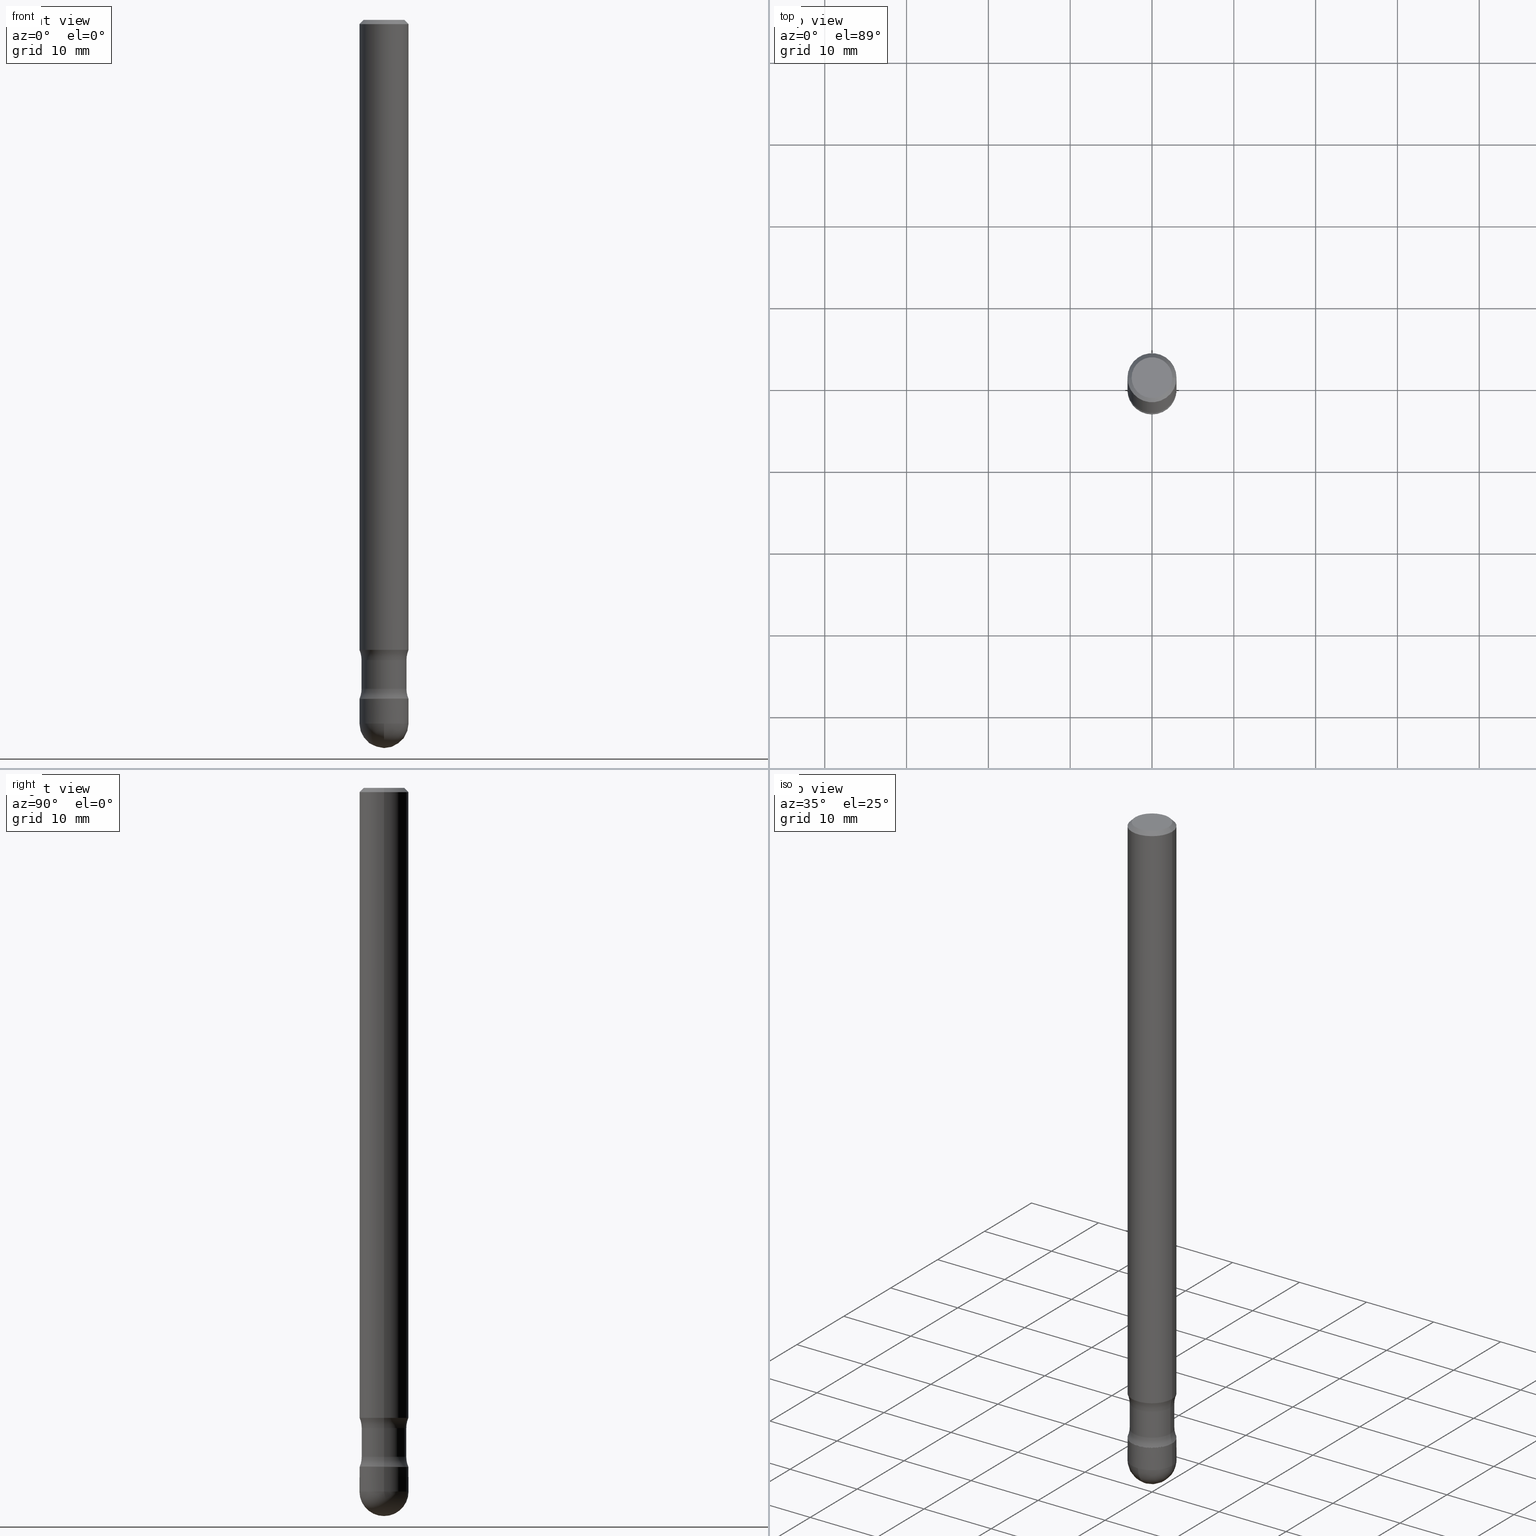
[diagram: canonical four-view strip — front | top / right | iso, engineering-drawing reading convention]
A machine part, canonical four-view strip (front | top / right | iso — engineering-drawing reading convention). The complete STEP part file that produces these views, byte-faithful:
ISO-10303-21;
HEADER;
FILE_DESCRIPTION (( 'STEP AP203' ),
    '1' );
FILE_NAME ('91356.STEP',
    '2024-02-29T19:27:18',
    ( '' ),
    ( '' ),
    'SwSTEP 2.0',
    'SolidWorks 2023',
    '' );
FILE_SCHEMA (( 'CONFIG_CONTROL_DESIGN' ));
ENDSEC;

DATA;
#1 = PRODUCT_DEFINITION ( 'UNKNOWN', '', #138, #198 ) ;
#2 = VERTEX_POINT ( 'NONE', #283 ) ;
#3 = VERTEX_POINT ( 'NONE', #464 ) ;
#4 = DIRECTION ( 'NONE',  ( -1.000000000000000000, 6.982962677686266711E-15, -4.883557194083112901E-29 ) ) ;
#5 = ORIENTED_EDGE ( 'NONE', *, *, #475, .T. ) ;
#6 = CONICAL_SURFACE ( 'NONE', #82, 0.1175999999999994133, 0.7853981633982034527 ) ;
#7 = ORIENTED_EDGE ( 'NONE', *, *, #158, .F. ) ;
#8 = APPROVAL_PERSON_ORGANIZATION ( #559, #336, #250 ) ;
#9 = DIRECTION ( 'NONE',  ( -1.000000000000000000, 6.982962677686265922E-15, -4.876176775795935793E-29 ) ) ;
#10 = DIRECTION ( 'NONE',  ( -1.000000000000000000, 6.982962677686265922E-15, 0.000000000000000000 ) ) ;
#11 = COORDINATED_UNIVERSAL_TIME_OFFSET ( 5, 0, .BEHIND. ) ;
#12 = FACE_OUTER_BOUND ( 'NONE', #456, .T. ) ;
#13 = APPROVAL_DATE_TIME ( #184, #304 ) ;
#14 = CARTESIAN_POINT ( 'NONE',  ( 8.279868283981634472E-29, -1.182145751705512057E-14, -3.385799999999999699 ) ) ;
#15 = ORIENTED_EDGE ( 'NONE', *, *, #383, .F. ) ;
#16 = PERSON_AND_ORGANIZATION ( #71, #495 ) ;
#17 = AXIS2_PLACEMENT_3D ( 'NONE', #103, #105, #23 ) ;
#18 = CYLINDRICAL_SURFACE ( 'NONE', #202, 0.1180999999999994415 ) ;
#19 = VERTEX_POINT ( 'NONE', #189 ) ;
#20 = DIRECTION ( 'NONE',  ( 1.000000000000000000, -7.105427357601001070E-15, 4.926315508542082329E-29 ) ) ;
#21 = VERTEX_POINT ( 'NONE', #374 ) ;
#22 = EDGE_CURVE ( 'NONE', #2, #19, #506, .T. ) ;
#23 = DIRECTION ( 'NONE',  ( 1.000000000000000000, -6.982962677686272233E-15, 0.000000000000000000 ) ) ;
#24 = ORIENTED_EDGE ( 'NONE', *, *, #22, .F. ) ;
#25 = TOROIDAL_SURFACE ( 'NONE', #459, 0.2329999999999877169, 0.1249999999999882871 ) ;
#26 = VECTOR ( 'NONE', #343, 39.37007874015748143 ) ;
#27 = DIRECTION ( 'NONE',  ( 0.7071067811865421326, -7.319954787623237113E-15, -0.7071067811865529018 ) ) ;
#28 = ORIENTED_EDGE ( 'NONE', *, *, #396, .F. ) ;
#29 = DIRECTION ( 'NONE',  ( -2.445468806185136597E-29, 3.491481338843145583E-15, 1.000000000000000000 ) ) ;
#30 = VERTEX_POINT ( 'NONE', #146 ) ;
#31 = APPLICATION_CONTEXT ( 'configuration controlled 3d designs of mechanical parts and assemblies' ) ;
#32 = DIRECTION ( 'NONE',  ( -6.982962677686266711E-15, -1.000000000000000000, 3.491481338843145583E-15 ) ) ;
#33 = PRODUCT ( '91356', '91356', '', ( #426 ) ) ;
#34 = FACE_OUTER_BOUND ( 'NONE', #152, .T. ) ;
#35 = CIRCLE ( 'NONE', #535, 0.1175999999999994133 ) ;
#36 = CARTESIAN_POINT ( 'NONE',  ( -0.2329999999999877169, -9.129259620400167476E-15, -3.080723876320338395 ) ) ;
#37 = CYLINDRICAL_SURFACE ( 'NONE', #305, 0.1180999999999998579 ) ;
#38 = DIRECTION ( 'NONE',  ( 0.000000000000000000, 0.000000000000000000, 1.000000000000000000 ) ) ;
#39 = FACE_OUTER_BOUND ( 'NONE', #508, .T. ) ;
#40 = DATE_AND_TIME ( #437, #395 ) ;
#41 = AXIS2_PLACEMENT_3D ( 'NONE', #397, #124, #83 ) ;
#42 = CARTESIAN_POINT ( 'NONE',  ( 7.870682963910265403E-29, -1.123724932533975948E-14, -3.218476123679660628 ) ) ;
#43 = APPROVAL_PERSON_ORGANIZATION ( #16, #304, #494 ) ;
#44 = ADVANCED_FACE ( 'NONE', ( #61 ), #377, .F. ) ;
#45 = CARTESIAN_POINT ( 'NONE',  ( 7.990201323200652143E-29, -1.140788986675909760E-14, -3.267349517193451458 ) ) ;
#46 = FACE_OUTER_BOUND ( 'NONE', #109, .T. ) ;
#47 = CARTESIAN_POINT ( 'NONE',  ( 7.991058417971169471E-29, -1.140911357093774486E-14, -3.267699999999999605 ) ) ;
#48 = VERTEX_POINT ( 'NONE', #550 ) ;
#49 = AXIS2_PLACEMENT_3D ( 'NONE', #140, #499, #258 ) ;
#50 = DIRECTION ( 'NONE',  ( 1.000000000000000000, -6.982962677686265922E-15, 4.876176775795935793E-29 ) ) ;
#51 = ORIENTED_EDGE ( 'NONE', *, *, #235, .T. ) ;
#52 = DIRECTION ( 'NONE',  ( 2.445468806185136597E-29, -3.491481338843145583E-15, -1.000000000000000000 ) ) ;
#53 = ORIENTED_EDGE ( 'NONE', *, *, #345, .F. ) ;
#54 = CARTESIAN_POINT ( 'NONE',  ( -0.1180999999999994415, 8.391509709326743514E-16, -5.809262341591016458E-30 ) ) ;
#55 = ORIENTED_EDGE ( 'NONE', *, *, #345, .T. ) ;
#56 = AXIS2_PLACEMENT_3D ( 'NONE', #523, #522, #203 ) ;
#57 = CC_DESIGN_APPROVAL ( #304, ( #183 ) ) ;
#58 = CARTESIAN_POINT ( 'NONE',  ( 0.1079999999999993604, -1.215004735469706713E-14, -3.267699999999999605 ) ) ;
#59 = VERTEX_POINT ( 'NONE', #519 ) ;
#60 = CARTESIAN_POINT ( 'NONE',  ( -0.1175999999999994133, -1.057351531368387230E-14, -3.267699999999999605 ) ) ;
#61 = FACE_OUTER_BOUND ( 'NONE', #385, .T. ) ;
#62 = DIRECTION ( 'NONE',  ( -1.000000000000000000, 6.982962677686265922E-15, 0.000000000000000000 ) ) ;
#63 = EDGE_CURVE ( 'NONE', #30, #48, #488, .T. ) ;
#64 = ADVANCED_FACE ( 'NONE', ( #477 ), #516, .F. ) ;
#65 = VECTOR ( 'NONE', #524, 39.37007874015748143 ) ;
#66 = CC_DESIGN_APPROVAL ( #336, ( #1 ) ) ;
#67 = DIRECTION ( 'NONE',  ( 2.445468806185136597E-29, -3.491481338843145583E-15, -1.000000000000000000 ) ) ;
#68 = ORIENTED_EDGE ( 'NONE', *, *, #354, .F. ) ;
#69 = PLANE ( 'NONE',  #555 ) ;
#70 = ORIENTED_EDGE ( 'NONE', *, *, #187, .T. ) ;
#71 = PERSON ( 'UNSPECIFIED', 'UNSPECIFIED', 'UNSPECIFIED', ('UNSPECIFIED'), ('UNSPECIFIED'), ('UNSPECIFIED') ) ;
#72 = FACE_OUTER_BOUND ( 'NONE', #529, .T. ) ;
#73 = ADVANCED_FACE ( 'NONE', ( #348 ), #37, .T. ) ;
#74 = CIRCLE ( 'NONE', #422, 0.1181000000000000383 ) ;
#75 = TOROIDAL_SURFACE ( 'NONE', #504, 0.2329999999999978200, 0.1249999999999985151 ) ;
#76 = DIRECTION ( 'NONE',  ( -1.000000000000000000, 6.982962677686261977E-15, 0.000000000000000000 ) ) ;
#77 = DIRECTION ( 'NONE',  ( 2.438088387897960049E-29, -3.491481338843145188E-15, -1.000000000000000000 ) ) ;
#78 = DIRECTION ( 'NONE',  ( 2.445468806185136597E-29, -3.491481338843145583E-15, -1.000000000000000000 ) ) ;
#79 = PERSON_AND_ORGANIZATION_ROLE ( 'creator' ) ;
#80 = DIRECTION ( 'NONE',  ( 1.000000000000000000, -6.982962677686272233E-15, 0.000000000000000000 ) ) ;
#81 = CC_DESIGN_PERSON_AND_ORGANIZATION_ASSIGNMENT ( #500, #220, ( #183 ) ) ;
#82 = AXIS2_PLACEMENT_3D ( 'NONE', #125, #447, #85 ) ;
#83 = DIRECTION ( 'NONE',  ( -6.982962677686265922E-15, -1.000000000000000000, 0.000000000000000000 ) ) ;
#84 = ADVANCED_FACE ( 'NONE', ( #479 ), #394, .T. ) ;
#85 = DIRECTION ( 'NONE',  ( 1.000000000000000000, -6.982962677686261977E-15, 0.000000000000000000 ) ) ;
#86 = ORIENTED_EDGE ( 'NONE', *, *, #155, .F. ) ;
#87 = CARTESIAN_POINT ( 'NONE',  ( -0.1180999999999994693, -1.077613457306376004E-14, -3.385799999999999699 ) ) ;
#88 = VERTEX_POINT ( 'NONE', #205 ) ;
#89 = DIRECTION ( 'NONE',  ( -1.000000000000000000, 6.982962677686270655E-15, 0.000000000000000000 ) ) ;
#90 = ORIENTED_EDGE ( 'NONE', *, *, #355, .T. ) ;
#91 = DATE_AND_TIME ( #139, #288 ) ;
#92 = DIRECTION ( 'NONE',  ( -2.445468806185136597E-29, 3.491481338843145583E-15, 1.000000000000000000 ) ) ;
#93 = ORIENTED_EDGE ( 'NONE', *, *, #396, .T. ) ;
#94 = PERSON_AND_ORGANIZATION ( #71, #495 ) ;
#95 = CARTESIAN_POINT ( 'NONE',  ( -0.1180999999999996913, 7.548582654578818090E-16, -0.02000000000000033348 ) ) ;
#96 = EDGE_CURVE ( 'NONE', #48, #30, #35, .T. ) ;
#97 = EDGE_LOOP ( 'NONE', ( #55, #141, #493, #24 ) ) ;
#98 = CARTESIAN_POINT ( 'NONE',  ( 4.890937612370354609E-31, -6.982962677686407473E-17, -0.02000000000000033348 ) ) ;
#99 = ORIENTED_EDGE ( 'NONE', *, *, #131, .T. ) ;
#100 = COORDINATED_UNIVERSAL_TIME_OFFSET ( 5, 0, .BEHIND. ) ;
#101 = AXIS2_PLACEMENT_3D ( 'NONE', #252, #116, #299 ) ;
#102 = CONICAL_SURFACE ( 'NONE', #211, 0.1180999999999996913, 0.7853981633974407295 ) ;
#103 = CARTESIAN_POINT ( 'NONE',  ( 8.279868283981634472E-29, -1.182145751705512057E-14, -3.385799999999999699 ) ) ;
#104 = ORIENTED_EDGE ( 'NONE', *, *, #442, .F. ) ;
#105 = DIRECTION ( 'NONE',  ( -2.445468806185136597E-29, 3.491481338843145583E-15, 1.000000000000000000 ) ) ;
#106 = ORIENTED_EDGE ( 'NONE', *, *, #515, .F. ) ;
#107 = ORIENTED_EDGE ( 'NONE', *, *, #442, .T. ) ;
#108 = CARTESIAN_POINT ( 'NONE',  ( 8.064392034097104120E-29, -1.213003177103627933E-14, -3.385799999999999699 ) ) ;
#109 = EDGE_LOOP ( 'NONE', ( #514, #107, #323, #225 ) ) ;
#110 = EDGE_CURVE ( 'NONE', #21, #291, #561, .T. ) ;
#111 = AXIS2_PLACEMENT_3D ( 'NONE', #214, #178, #4 ) ;
#112 = LOCAL_TIME ( 14, 27, 18.00000000000000000, #11 ) ;
#113 = APPROVAL_STATUS ( 'not_yet_approved' ) ;
#114 = VERTEX_POINT ( 'NONE', #249 ) ;
#115 = LINE ( 'NONE', #156, #26 ) ;
#116 = DIRECTION ( 'NONE',  ( 2.438088387897960049E-29, -3.491481338843145188E-15, -1.000000000000000000 ) ) ;
#117 =( CONVERSION_BASED_UNIT ( 'INCH', #292 ) LENGTH_UNIT ( ) NAMED_UNIT ( #353 ) );
#118 = DIRECTION ( 'NONE',  ( 2.445468806185136597E-29, -3.491481338843145583E-15, -1.000000000000000000 ) ) ;
#119 =( LENGTH_UNIT ( ) NAMED_UNIT ( * ) SI_UNIT ( $, .METRE. ) );
#120 = CIRCLE ( 'NONE', #402, 0.09809999999999965969 ) ;
#121 = DIRECTION ( 'NONE',  ( -1.000000000000000000, 6.982962677686269866E-15, 0.000000000000000000 ) ) ;
#122 = DATE_AND_TIME ( #350, #562 ) ;
#123 = DIRECTION ( 'NONE',  ( 2.445468806185136597E-29, -3.491481338843145583E-15, -1.000000000000000000 ) ) ;
#124 = DIRECTION ( 'NONE',  ( -1.000000000000000000, 6.982962677686265922E-15, -4.883557194083112340E-29 ) ) ;
#125 = CARTESIAN_POINT ( 'NONE',  ( 7.991058417971169471E-29, -1.140911357093774486E-14, -3.267699999999999605 ) ) ;
#126 = EDGE_CURVE ( 'NONE', #466, #19, #512, .T. ) ;
#127 = ORIENTED_EDGE ( 'NONE', *, *, #268, .F. ) ;
#128 = ORIENTED_EDGE ( 'NONE', *, *, #96, .F. ) ;
#129 = DIRECTION ( 'NONE',  ( 2.445468806185136597E-29, -3.491481338843145583E-15, -1.000000000000000000 ) ) ;
#130 = ADVANCED_FACE ( 'NONE', ( #72 ), #518, .T. ) ;
#131 = EDGE_CURVE ( 'NONE', #88, #458, #339, .T. ) ;
#132 = CARTESIAN_POINT ( 'NONE',  ( 8.064392034097104120E-29, -1.213003177103627933E-14, -3.385799999999999699 ) ) ;
#133 = ORIENTED_EDGE ( 'NONE', *, *, #158, .T. ) ;
#134 = VERTEX_POINT ( 'NONE', #435 ) ;
#135 = LINE ( 'NONE', #492, #65 ) ;
#136 = AXIS2_PLACEMENT_3D ( 'NONE', #175, #224, #496 ) ;
#137 = CIRCLE ( 'NONE', #201, 0.1249999999999882871 ) ;
#138 = PRODUCT_DEFINITION_FORMATION_WITH_SPECIFIED_SOURCE ( 'ANY', '', #33, .NOT_KNOWN. ) ;
#139 = CALENDAR_DATE ( 2024, 29, 2 ) ;
#140 = CARTESIAN_POINT ( 'NONE',  ( 7.991058417971169471E-29, -1.140911357093774486E-14, -3.267699999999999605 ) ) ;
#141 = ORIENTED_EDGE ( 'NONE', *, *, #436, .T. ) ;
#142 = ADVANCED_FACE ( 'NONE', ( #39 ), #25, .F. ) ;
#143 = DIRECTION ( 'NONE',  ( -0.7071067811865421326, 2.468850131082200657E-15, -0.7071067811865529018 ) ) ;
#144 = ORIENTED_EDGE ( 'NONE', *, *, #63, .T. ) ;
#145 = DIRECTION ( 'NONE',  ( 1.000000000000000000, -6.982962677686268288E-15, 0.000000000000000000 ) ) ;
#146 = CARTESIAN_POINT ( 'NONE',  ( -0.1175999999999994133, -1.057165829653353752E-14, -3.267699999999999605 ) ) ;
#147 = CIRCLE ( 'NONE', #247, 0.1180999999999996913 ) ;
#148 = ORIENTED_EDGE ( 'NONE', *, *, #302, .T. ) ;
#149 = CARTESIAN_POINT ( 'NONE',  ( -0.1180999999999994138, -1.077613457306376004E-14, -3.267699999999999605 ) ) ;
#150 = ORIENTED_EDGE ( 'NONE', *, *, #267, .F. ) ;
#151 = DIRECTION ( 'NONE',  ( 6.860497997771531562E-15, 1.000000000000000000, -3.491481338843145583E-15 ) ) ;
#152 = EDGE_LOOP ( 'NONE', ( #409, #51, #312, #461 ) ) ;
#153 = AXIS2_PLACEMENT_3D ( 'NONE', #566, #171, #50 ) ;
#154 = CIRCLE ( 'NONE', #489, 0.1180999999999994138 ) ;
#155 = EDGE_CURVE ( 'NONE', #2, #491, #137, .T. ) ;
#156 = CARTESIAN_POINT ( 'NONE',  ( 0.1180999999999994415, -8.246878922347442197E-16, 5.758764772214972414E-30 ) ) ;
#157 = DIRECTION ( 'NONE',  ( 2.445468806185136597E-29, -3.491481338843145583E-15, -1.000000000000000000 ) ) ;
#158 = EDGE_CURVE ( 'NONE', #491, #458, #367, .T. ) ;
#159 = CARTESIAN_POINT ( 'NONE',  ( 0.000000000000000000, 0.000000000000000000, 0.000000000000000000 ) ) ;
#160 = FACE_OUTER_BOUND ( 'NONE', #425, .T. ) ;
#161 = DIRECTION ( 'NONE',  ( -1.000000000000000000, 6.982962677686268288E-15, -4.883557194083112901E-29 ) ) ;
#162 = EDGE_CURVE ( 'NONE', #114, #134, #358, .T. ) ;
#163 = COORDINATED_UNIVERSAL_TIME_OFFSET ( 5, 0, .BEHIND. ) ;
#164 = AXIS2_PLACEMENT_3D ( 'NONE', #560, #483, #166 ) ;
#165 = DIRECTION ( 'NONE',  ( 2.445468806185136597E-29, -3.491481338843145583E-15, -1.000000000000000000 ) ) ;
#166 = DIRECTION ( 'NONE',  ( -1.000000000000000000, 6.860497997771536296E-15, 0.000000000000000000 ) ) ;
#167 = ORIENTED_EDGE ( 'NONE', *, *, #110, .F. ) ;
#168 = DIRECTION ( 'NONE',  ( 1.000000000000000000, -6.982962677686274599E-15, 0.000000000000000000 ) ) ;
#169 = EDGE_LOOP ( 'NONE', ( #265, #15, #243, #90 ) ) ;
#170 = AXIS2_PLACEMENT_3D ( 'NONE', #132, #441, #270 ) ;
#171 = DIRECTION ( 'NONE',  ( -2.438088387897960049E-29, 3.491481338843145188E-15, 1.000000000000000000 ) ) ;
#172 = VECTOR ( 'NONE', #507, 39.37007874015748143 ) ;
#173 = ORIENTED_EDGE ( 'NONE', *, *, #405, .T. ) ;
#174 = PRODUCT_RELATED_PRODUCT_CATEGORY ( 'detail', '', ( #33 ) ) ;
#175 = CARTESIAN_POINT ( 'NONE',  ( 7.533814140011144657E-29, -1.075628992430098040E-14, -3.080723876320338395 ) ) ;
#176 = ORIENTED_EDGE ( 'NONE', *, *, #96, .T. ) ;
#177 = PERSON_AND_ORGANIZATION ( #71, #495 ) ;
#178 = DIRECTION ( 'NONE',  ( 2.445468806185136597E-29, -3.491481338843145583E-15, -1.000000000000000000 ) ) ;
#179 = ADVANCED_BREP_SHAPE_REPRESENTATION ( '91356', ( #375, #564, #229 ), #471 ) ;
#180 = DIRECTION ( 'NONE',  ( 1.000000000000000000, -6.982962677686272233E-15, 0.000000000000000000 ) ) ;
#181 = AXIS2_PLACEMENT_3D ( 'NONE', #234, #238, #161 ) ;
#182 = EDGE_LOOP ( 'NONE', ( #176, #144 ) ) ;
#183 = SECURITY_CLASSIFICATION ( '', '', #411 ) ;
#184 = DATE_AND_TIME ( #324, #112 ) ;
#185 = FACE_OUTER_BOUND ( 'NONE', #420, .T. ) ;
#186 = EDGE_LOOP ( 'NONE', ( #106, #510, #173, #219 ) ) ;
#187 = EDGE_CURVE ( 'NONE', #59, #114, #277, .T. ) ;
#188 = CARTESIAN_POINT ( 'NONE',  ( 0.1181000000000000522, -6.137352466276741178E-15, -3.031500000000000750 ) ) ;
#189 = CARTESIAN_POINT ( 'NONE',  ( -0.1079999999999993049, -1.048308935614964628E-14, -3.218476123679660628 ) ) ;
#190 = DIRECTION ( 'NONE',  ( -2.445468806185136597E-29, 3.491481338843145583E-15, 1.000000000000000000 ) ) ;
#191 = ORIENTED_EDGE ( 'NONE', *, *, #187, .F. ) ;
#192 = AXIS2_PLACEMENT_3D ( 'NONE', #438, #118, #207 ) ;
#193 = CIRCLE ( 'NONE', #17, 0.1180999999999994554 ) ;
#194 = CARTESIAN_POINT ( 'NONE',  ( 0.1180999999999994138, -1.223380146317248997E-14, -3.267699999999999605 ) ) ;
#195 = EDGE_LOOP ( 'NONE', ( #222, #284, #7, #444 ) ) ;
#196 = FACE_OUTER_BOUND ( 'NONE', #540, .T. ) ;
#197 = ORIENTED_EDGE ( 'NONE', *, *, #200, .T. ) ;
#198 = DESIGN_CONTEXT ( 'detailed design', #253, 'design' ) ;
#199 = DIRECTION ( 'NONE',  ( 2.445468806185136597E-29, -3.491481338843145583E-15, -1.000000000000000000 ) ) ;
#200 = EDGE_CURVE ( 'NONE', #320, #3, #349, .T. ) ;
#201 = AXIS2_PLACEMENT_3D ( 'NONE', #36, #32, #351 ) ;
#202 = AXIS2_PLACEMENT_3D ( 'NONE', #276, #190, #376 ) ;
#203 = DIRECTION ( 'NONE',  ( -1.000000000000000000, 6.982962677686270655E-15, 0.000000000000000000 ) ) ;
#204 = PERSON_AND_ORGANIZATION ( #71, #495 ) ;
#205 = CARTESIAN_POINT ( 'NONE',  ( 0.1079999999999994298, -1.144593710015005919E-14, -3.080723876320338395 ) ) ;
#206 = DIRECTION ( 'NONE',  ( 2.445468806185136597E-29, -3.491481338843145583E-15, -1.000000000000000000 ) ) ;
#207 = DIRECTION ( 'NONE',  ( -1.000000000000000000, 6.982962677686263555E-15, 0.000000000000000000 ) ) ;
#208 = AXIS2_PLACEMENT_3D ( 'NONE', #14, #362, #180 ) ;
#209 = DATE_TIME_ROLE ( 'creation_date' ) ;
#210 = LOCAL_TIME ( 14, 27, 18.00000000000000000, #472 ) ;
#211 = AXIS2_PLACEMENT_3D ( 'NONE', #332, #501, #62 ) ;
#212 = DIRECTION ( 'NONE',  ( -2.445468806185136597E-29, 3.491481338843145583E-15, 1.000000000000000000 ) ) ;
#213 = DIRECTION ( 'NONE',  ( 2.445468806185136597E-29, -3.491481338843145583E-15, -1.000000000000000000 ) ) ;
#214 = CARTESIAN_POINT ( 'NONE',  ( 7.533814140011144657E-29, -1.075628992430098040E-14, -3.080723876320338395 ) ) ;
#215 = EDGE_LOOP ( 'NONE', ( #546, #357, #242, #432, #503 ) ) ;
#216 = VECTOR ( 'NONE', #379, 39.37007874015748143 ) ;
#217 = DIRECTION ( 'NONE',  ( 2.445468806185136597E-29, -3.491481338843145583E-15, -1.000000000000000000 ) ) ;
#218 = CONICAL_SURFACE ( 'NONE', #331, 0.1180999999999996913, 0.7853981633974407295 ) ;
#219 = ORIENTED_EDGE ( 'NONE', *, *, #475, .F. ) ;
#220 = PERSON_AND_ORGANIZATION_ROLE ( 'classification_officer' ) ;
#221 = FACE_OUTER_BOUND ( 'NONE', #525, .T. ) ;
#222 = ORIENTED_EDGE ( 'NONE', *, *, #319, .T. ) ;
#223 = CC_DESIGN_PERSON_AND_ORGANIZATION_ASSIGNMENT ( #484, #79, ( #1 ) ) ;
#224 = DIRECTION ( 'NONE',  ( 2.445468806185136597E-29, -3.491481338843145583E-15, -1.000000000000000000 ) ) ;
#225 = ORIENTED_EDGE ( 'NONE', *, *, #302, .F. ) ;
#226 = LINE ( 'NONE', #421, #481 ) ;
#227 = CLOSED_SHELL ( 'NONE', ( #378, #44, #84, #341, #273, #412, #446, #73, #142, #552, #462, #251, #565, #246 ) ) ;
#228 = VERTEX_POINT ( 'NONE', #387 ) ;
#229 = AXIS2_PLACEMENT_3D ( 'NONE', #159, #38, #433 ) ;
#230 = ADVANCED_FACE ( 'NONE', ( #160 ), #313, .T. ) ;
#231 = DIRECTION ( 'NONE',  ( 7.105427357601001070E-15, 1.000000000000000000, 0.000000000000000000 ) ) ;
#232 = ORIENTED_EDGE ( 'NONE', *, *, #110, .T. ) ;
#233 = DIRECTION ( 'NONE',  ( -1.000000000000000000, 6.982962677686265922E-15, 0.000000000000000000 ) ) ;
#234 = CARTESIAN_POINT ( 'NONE',  ( 7.870682963910266524E-29, -1.123724932533976106E-14, -3.218476123679661072 ) ) ;
#235 = EDGE_CURVE ( 'NONE', #88, #2, #413, .T. ) ;
#236 = CC_DESIGN_DATE_AND_TIME_ASSIGNMENT ( #40, #209, ( #1 ) ) ;
#237 = CARTESIAN_POINT ( 'NONE',  ( 0.1180999999999996913, -8.800544403136798514E-16, -0.02000000000000033348 ) ) ;
#238 = DIRECTION ( 'NONE',  ( 2.445468806185136597E-29, -3.491481338843145583E-15, -1.000000000000000000 ) ) ;
#239 = AXIS2_PLACEMENT_3D ( 'NONE', #47, #92, #168 ) ;
#240 = CIRCLE ( 'NONE', #451, 0.1249999999999985151 ) ;
#241 = DIRECTION ( 'NONE',  ( -0.7071067811870814790, 7.493145998872283714E-15, 0.7071067811860135555 ) ) ;
#242 = ORIENTED_EDGE ( 'NONE', *, *, #162, .T. ) ;
#243 = ORIENTED_EDGE ( 'NONE', *, *, #399, .T. ) ;
#244 = CARTESIAN_POINT ( 'NONE',  ( 7.991058417971169471E-29, -1.140911357093774486E-14, -3.267699999999999605 ) ) ;
#245 = AXIS2_PLACEMENT_3D ( 'NONE', #344, #129, #398 ) ;
#246 = ADVANCED_FACE ( 'NONE', ( #407 ), #452, .T. ) ;
#247 = AXIS2_PLACEMENT_3D ( 'NONE', #98, #337, #233 ) ;
#248 =( NAMED_UNIT ( * ) SI_UNIT ( $, .STERADIAN. ) SOLID_ANGLE_UNIT ( ) );
#249 = CARTESIAN_POINT ( 'NONE',  ( -8.246878922346650378E-16, -0.1181000000000117789, -3.385799999999999255 ) ) ;
#250 = APPROVAL_ROLE ( '' ) ;
#251 = ADVANCED_FACE ( 'NONE', ( #221 ), #6, .T. ) ;
#252 = CARTESIAN_POINT ( 'NONE',  ( 7.991058417971169471E-29, -1.140911357093774486E-14, -3.267699999999999605 ) ) ;
#253 = APPLICATION_CONTEXT ( 'configuration controlled 3d designs of mechanical parts and assemblies' ) ;
#254 = COORDINATED_UNIVERSAL_TIME_OFFSET ( 5, 0, .BEHIND. ) ;
#255 = CARTESIAN_POINT ( 'NONE',  ( 7.991058417971169471E-29, -1.140911357093774486E-14, -3.267699999999999605 ) ) ;
#256 = AXIS2_PLACEMENT_3D ( 'NONE', #42, #78, #121 ) ;
#257 = CIRCLE ( 'NONE', #368, 0.1180999999999994554 ) ;
#258 = DIRECTION ( 'NONE',  ( 1.000000000000000000, -6.982962677686261977E-15, 0.000000000000000000 ) ) ;
#259 = EDGE_CURVE ( 'NONE', #458, #491, #74, .T. ) ;
#260 = CC_DESIGN_PERSON_AND_ORGANIZATION_ASSIGNMENT ( #94, #363, ( #138 ) ) ;
#261 = CARTESIAN_POINT ( 'NONE',  ( -0.1180999999999998579, -1.058442567870299818E-14, -3.267699999999999605 ) ) ;
#262 = ORIENTED_EDGE ( 'NONE', *, *, #162, .F. ) ;
#263 = ORIENTED_EDGE ( 'NONE', *, *, #235, .F. ) ;
#264 = CARTESIAN_POINT ( 'NONE',  ( 8.391509709327586609E-16, 0.1180999999999878397, -3.385800000000000143 ) ) ;
#265 = ORIENTED_EDGE ( 'NONE', *, *, #448, .F. ) ;
#266 = ORIENTED_EDGE ( 'NONE', *, *, #497, .T. ) ;
#267 = EDGE_CURVE ( 'NONE', #534, #528, #315, .T. ) ;
#268 = EDGE_CURVE ( 'NONE', #3, #320, #120, .T. ) ;
#269 = TOROIDAL_SURFACE ( 'NONE', #111, 0.2329999999999877169, 0.1249999999999882871 ) ;
#270 = DIRECTION ( 'NONE',  ( -6.982962677686265922E-15, -1.000000000000000000, 4.626330217890363025E-15 ) ) ;
#271 = EDGE_LOOP ( 'NONE', ( #286, #308 ) ) ;
#272 = APPROVAL_STATUS ( 'not_yet_approved' ) ;
#273 = ADVANCED_FACE ( 'NONE', ( #410 ), #443, .T. ) ;
#274 = CARTESIAN_POINT ( 'NONE',  ( 0.000000000000000000, 0.000000000000000000, 0.000000000000000000 ) ) ;
#275 = LINE ( 'NONE', #54, #521 ) ;
#276 = CARTESIAN_POINT ( 'NONE',  ( 0.000000000000000000, 0.000000000000000000, 0.000000000000000000 ) ) ;
#277 = CIRCLE ( 'NONE', #41, 0.1181000000000001632 ) ;
#278 = ORIENTED_EDGE ( 'NONE', *, *, #474, .F. ) ;
#279 = AXIS2_PLACEMENT_3D ( 'NONE', #244, #206, #298 ) ;
#280 = DIRECTION ( 'NONE',  ( 1.000000000000000000, -6.982962677686272233E-15, 0.000000000000000000 ) ) ;
#281 = ORIENTED_EDGE ( 'NONE', *, *, #126, .T. ) ;
#282 = DIRECTION ( 'NONE',  ( -6.982962677686266711E-15, -1.000000000000000000, 3.491481338843145583E-15 ) ) ;
#283 = CARTESIAN_POINT ( 'NONE',  ( -0.1079999999999994298, -1.000212995511086877E-14, -3.080723876320338395 ) ) ;
#284 = ORIENTED_EDGE ( 'NONE', *, *, #502, .T. ) ;
#285 = DIRECTION ( 'NONE',  ( -1.000000000000000000, 6.860497997771533140E-15, 0.000000000000000000 ) ) ;
#286 = ORIENTED_EDGE ( 'NONE', *, *, #267, .T. ) ;
#287 = AXIS2_PLACEMENT_3D ( 'NONE', #322, #52, #10 ) ;
#288 = LOCAL_TIME ( 14, 27, 18.00000000000000000, #100 ) ;
#289 = CC_DESIGN_PERSON_AND_ORGANIZATION_ASSIGNMENT ( #177, #531, ( #138 ) ) ;
#290 = APPROVAL_ROLE ( '' ) ;
#291 = VERTEX_POINT ( 'NONE', #404 ) ;
#292 = LENGTH_MEASURE_WITH_UNIT ( LENGTH_MEASURE( 0.02539999999999999897 ), #119 );
#293 = CARTESIAN_POINT ( 'NONE',  ( 7.991058417971169471E-29, -1.140911357093774486E-14, -3.267699999999999605 ) ) ;
#294 = UNCERTAINTY_MEASURE_WITH_UNIT (LENGTH_MEASURE( 1.000000000000000082E-05 ), #117, 'distance_accuracy_value', 'NONE');
#295 = DIRECTION ( 'NONE',  ( -1.000000000000000000, 6.982962677686266711E-15, 0.000000000000000000 ) ) ;
#296 = AXIS2_PLACEMENT_3D ( 'NONE', #485, #390, #80 ) ;
#297 = AXIS2_PLACEMENT_3D ( 'NONE', #463, #151, #285 ) ;
#298 = DIRECTION ( 'NONE',  ( -1.000000000000000000, 6.982962677686266711E-15, 0.000000000000000000 ) ) ;
#299 = DIRECTION ( 'NONE',  ( -1.000000000000000000, 6.982962677686265922E-15, -4.876176775795935793E-29 ) ) ;
#300 = APPROVAL_DATE_TIME ( #122, #336 ) ;
#301 = CARTESIAN_POINT ( 'NONE',  ( 0.000000000000000000, 0.000000000000000000, 0.000000000000000000 ) ) ;
#302 = EDGE_CURVE ( 'NONE', #48, #21, #135, .T. ) ;
#303 = DIRECTION ( 'NONE',  ( 2.445468806185136597E-29, -3.491481338843145583E-15, -1.000000000000000000 ) ) ;
#304 = APPROVAL ( #272, 'UNSPECIFIED' ) ;
#305 = AXIS2_PLACEMENT_3D ( 'NONE', #255, #157, #434 ) ;
#306 = CIRCLE ( 'NONE', #317, 0.1179504828065483096 ) ;
#307 = CARTESIAN_POINT ( 'NONE',  ( 7.991058417971169471E-29, -1.140911357093774486E-14, -3.267699999999999605 ) ) ;
#308 = ORIENTED_EDGE ( 'NONE', *, *, #543, .T. ) ;
#309 = ORIENTED_EDGE ( 'NONE', *, *, #200, .F. ) ;
#310 = DIRECTION ( 'NONE',  ( -1.000000000000000000, 6.982962677686267499E-15, -4.876176775795936914E-29 ) ) ;
#311 = ORIENTED_EDGE ( 'NONE', *, *, #474, .T. ) ;
#312 = ORIENTED_EDGE ( 'NONE', *, *, #22, .T. ) ;
#313 = SPHERICAL_SURFACE ( 'NONE', #170, 0.1181000000000001632 ) ;
#314 = EDGE_CURVE ( 'NONE', #228, #491, #527, .T. ) ;
#315 = CIRCLE ( 'NONE', #239, 0.1180999999999994138 ) ;
#316 = DIRECTION ( 'NONE',  ( 2.445468806185136597E-29, -3.491481338843145583E-15, -1.000000000000000000 ) ) ;
#317 = AXIS2_PLACEMENT_3D ( 'NONE', #45, #213, #530 ) ;
#318 = EDGE_LOOP ( 'NONE', ( #473, #5, #335, #338 ) ) ;
#319 = EDGE_CURVE ( 'NONE', #228, #330, #520, .T. ) ;
#320 = VERTEX_POINT ( 'NONE', #360 ) ;
#321 = DATE_AND_TIME ( #327, #210 ) ;
#322 = CARTESIAN_POINT ( 'NONE',  ( 4.890937612370354609E-31, -6.982962677686407473E-17, -0.02000000000000033348 ) ) ;
#323 = ORIENTED_EDGE ( 'NONE', *, *, #383, .T. ) ;
#324 = CALENDAR_DATE ( 2024, 29, 2 ) ;
#325 = DIRECTION ( 'NONE',  ( -1.000000000000000000, 6.982962677686265922E-15, 0.000000000000000000 ) ) ;
#326 = ORIENTED_EDGE ( 'NONE', *, *, #155, .T. ) ;
#327 = CALENDAR_DATE ( 2024, 29, 2 ) ;
#328 = DIRECTION ( 'NONE',  ( -1.000000000000000000, 6.982962677686268288E-15, -4.883557194083112901E-29 ) ) ;
#329 = CLOSED_SHELL ( 'NONE', ( #130, #533, #230, #486, #64 ) ) ;
#330 = VERTEX_POINT ( 'NONE', #400 ) ;
#331 = AXIS2_PLACEMENT_3D ( 'NONE', #549, #67, #325 ) ;
#332 = CARTESIAN_POINT ( 'NONE',  ( 4.890937612370354609E-31, -6.982962677686407473E-17, -0.02000000000000033348 ) ) ;
#333 = ORIENTED_EDGE ( 'NONE', *, *, #319, .F. ) ;
#334 = FACE_OUTER_BOUND ( 'NONE', #215, .T. ) ;
#335 = ORIENTED_EDGE ( 'NONE', *, *, #314, .T. ) ;
#336 = APPROVAL ( #482, 'UNSPECIFIED' ) ;
#337 = DIRECTION ( 'NONE',  ( 2.445468806185136597E-29, -3.491481338843145583E-15, -1.000000000000000000 ) ) ;
#338 = ORIENTED_EDGE ( 'NONE', *, *, #259, .F. ) ;
#339 = CIRCLE ( 'NONE', #164, 0.1249999999999882871 ) ;
#340 = CC_DESIGN_APPROVAL ( #346, ( #138 ) ) ;
#341 = ADVANCED_FACE ( 'NONE', ( #12 ), #269, .F. ) ;
#342 = DIRECTION ( 'NONE',  ( -1.000000000000000000, 6.982962677686261977E-15, 0.000000000000000000 ) ) ;
#343 = DIRECTION ( 'NONE',  ( -2.445468806185136877E-29, 3.491481338843145188E-15, 1.000000000000000000 ) ) ;
#344 = CARTESIAN_POINT ( 'NONE',  ( 7.533814140011144657E-29, -1.075628992430098040E-14, -3.080723876320338395 ) ) ;
#345 = EDGE_CURVE ( 'NONE', #2, #88, #469, .T. ) ;
#346 = APPROVAL ( #113, 'UNSPECIFIED' ) ;
#347 = CYLINDRICAL_SURFACE ( 'NONE', #279, 0.1079999999999993604 ) ;
#348 = FACE_OUTER_BOUND ( 'NONE', #318, .T. ) ;
#349 = CIRCLE ( 'NONE', #430, 0.09809999999999965969 ) ;
#350 = CALENDAR_DATE ( 2024, 29, 2 ) ;
#351 = DIRECTION ( 'NONE',  ( 1.000000000000000000, -6.982962677686264344E-15, 0.000000000000000000 ) ) ;
#352 = DIRECTION ( 'NONE',  ( -1.000000000000000000, 6.982962677686266711E-15, -4.883557194083112901E-29 ) ) ;
#353 = DIMENSIONAL_EXPONENTS ( 1.000000000000000000, 0.000000000000000000, 0.000000000000000000, 0.000000000000000000, 0.000000000000000000, 0.000000000000000000, 0.000000000000000000 ) ;
#354 = EDGE_CURVE ( 'NONE', #365, #114, #468, .T. ) ;
#355 = EDGE_CURVE ( 'NONE', #19, #466, #439, .T. ) ;
#356 = DIRECTION ( 'NONE',  ( 2.445468806185136597E-29, -3.491481338843145583E-15, -1.000000000000000000 ) ) ;
#357 = ORIENTED_EDGE ( 'NONE', *, *, #354, .T. ) ;
#358 = CIRCLE ( 'NONE', #296, 0.1180999999999994554 ) ;
#359 = VECTOR ( 'NONE', #241, 39.37007874015748143 ) ;
#360 = CARTESIAN_POINT ( 'NONE',  ( -0.09809999999999965969, 6.850286386810204829E-16, -4.783529417055797307E-30 ) ) ;
#361 = ORIENTED_EDGE ( 'NONE', *, *, #131, .F. ) ;
#362 = DIRECTION ( 'NONE',  ( -2.445468806185136597E-29, 3.491481338843145583E-15, 1.000000000000000000 ) ) ;
#363 = PERSON_AND_ORGANIZATION_ROLE ( 'design_supplier' ) ;
#364 = DIRECTION ( 'NONE',  ( -1.000000000000000000, 6.982962677686265133E-15, 0.000000000000000000 ) ) ;
#365 = VERTEX_POINT ( 'NONE', #87 ) ;
#366 = EDGE_LOOP ( 'NONE', ( #309, #127 ) ) ;
#367 = CIRCLE ( 'NONE', #56, 0.1181000000000000383 ) ;
#368 = AXIS2_PLACEMENT_3D ( 'NONE', #457, #29, #280 ) ;
#369 = CARTESIAN_POINT ( 'NONE',  ( 7.870682963910265403E-29, -1.123724932533975948E-14, -3.218476123679660628 ) ) ;
#370 = PRODUCT_DEFINITION_SHAPE ( 'NONE', 'NONE',  #1 ) ;
#371 = VERTEX_POINT ( 'NONE', #264 ) ;
#372 = CC_DESIGN_PERSON_AND_ORGANIZATION_ASSIGNMENT ( #204, #557, ( #33 ) ) ;
#373 = CARTESIAN_POINT ( 'NONE',  ( 7.870682963910266524E-29, -1.123724932533976106E-14, -3.218476123679661072 ) ) ;
#374 = CARTESIAN_POINT ( 'NONE',  ( 0.1179504828065483096, -1.221708891788960705E-14, -3.267349517193451458 ) ) ;
#375 = MANIFOLD_SOLID_BREP ( 'Body-Move/Copy2[1]', #329 ) ;
#376 = DIRECTION ( 'NONE',  ( 1.000000000000000000, -6.982962677686266711E-15, 4.876176775795935232E-29 ) ) ;
#377 = TOROIDAL_SURFACE ( 'NONE', #181, 0.2329999999999978200, 0.1249999999999985151 ) ;
#378 = ADVANCED_FACE ( 'NONE', ( #46 ), #389, .T. ) ;
#379 = DIRECTION ( 'NONE',  ( 2.445468806185136877E-29, -3.491481338843145188E-15, -1.000000000000000000 ) ) ;
#380 = AXIS2_PLACEMENT_3D ( 'NONE', #108, #467, #428 ) ;
#381 = LINE ( 'NONE', #58, #172 ) ;
#382 = ORIENTED_EDGE ( 'NONE', *, *, #405, .F. ) ;
#383 = EDGE_CURVE ( 'NONE', #291, #21, #306, .T. ) ;
#384 = LINE ( 'NONE', #95, #431 ) ;
#385 = EDGE_LOOP ( 'NONE', ( #167, #470, #281, #455 ) ) ;
#386 = DIRECTION ( 'NONE',  ( 1.000000000000000000, -6.982962677686274599E-15, 0.000000000000000000 ) ) ;
#387 = CARTESIAN_POINT ( 'NONE',  ( -0.1180999999999996913, 7.548582654578818090E-16, -0.02000000000000033348 ) ) ;
#388 = AXIS2_PLACEMENT_3D ( 'NONE', #293, #558, #295 ) ;
#389 = CONICAL_SURFACE ( 'NONE', #49, 0.1175999999999994133, 0.7853981633982034527 ) ;
#390 = DIRECTION ( 'NONE',  ( -2.445468806185136597E-29, 3.491481338843145583E-15, 1.000000000000000000 ) ) ;
#391 = CARTESIAN_POINT ( 'NONE',  ( 8.211964108959807889E-16, 0.1175999999999880058, -3.267700000000000049 ) ) ;
#392 = CARTESIAN_POINT ( 'NONE',  ( 7.991058417971169471E-29, -1.140911357093774486E-14, -3.267699999999999605 ) ) ;
#393 = APPLICATION_PROTOCOL_DEFINITION ( 'international standard', 'config_control_design', 1994, #253 ) ;
#394 = CYLINDRICAL_SURFACE ( 'NONE', #388, 0.1079999999999993604 ) ;
#395 = LOCAL_TIME ( 14, 27, 18.00000000000000000, #254 ) ;
#396 = EDGE_CURVE ( 'NONE', #59, #371, #440, .T. ) ;
#397 = CARTESIAN_POINT ( 'NONE',  ( 8.064392034097104120E-29, -1.213003177103627933E-14, -3.385799999999999699 ) ) ;
#398 = DIRECTION ( 'NONE',  ( -1.000000000000000000, 6.982962677686261977E-15, 0.000000000000000000 ) ) ;
#399 = EDGE_CURVE ( 'NONE', #291, #19, #240, .T. ) ;
#400 = CARTESIAN_POINT ( 'NONE',  ( 0.1180999999999996913, -8.800544403136798514E-16, -0.02000000000000033348 ) ) ;
#401 = DIRECTION ( 'NONE',  ( -2.445468806185136597E-29, 3.491481338843145583E-15, 1.000000000000000000 ) ) ;
#402 = AXIS2_PLACEMENT_3D ( 'NONE', #274, #217, #310 ) ;
#403 = AXIS2_PLACEMENT_3D ( 'NONE', #369, #538, #490 ) ;
#404 = CARTESIAN_POINT ( 'NONE',  ( -0.1179504828065483096, -1.058424604750589465E-14, -3.267349517193451458 ) ) ;
#405 = EDGE_CURVE ( 'NONE', #320, #228, #384, .T. ) ;
#406 = APPROVAL_DATE_TIME ( #321, #346 ) ;
#407 = FACE_OUTER_BOUND ( 'NONE', #366, .T. ) ;
#408 = EDGE_CURVE ( 'NONE', #371, #365, #257, .T. ) ;
#409 = ORIENTED_EDGE ( 'NONE', *, *, #436, .F. ) ;
#410 = FACE_OUTER_BOUND ( 'NONE', #195, .T. ) ;
#411 = SECURITY_CLASSIFICATION_LEVEL ( 'unclassified' ) ;
#412 = ADVANCED_FACE ( 'NONE', ( #196 ), #218, .T. ) ;
#413 = CIRCLE ( 'NONE', #245, 0.1079999999999994298 ) ;
#414 = AXIS2_PLACEMENT_3D ( 'NONE', #545, #20, #231 ) ;
#415 = DIRECTION ( 'NONE',  ( 2.445468806185136877E-29, -3.491481338843145188E-15, -1.000000000000000000 ) ) ;
#416 = CC_DESIGN_DATE_AND_TIME_ASSIGNMENT ( #91, #498, ( #183 ) ) ;
#417 = LINE ( 'NONE', #60, #359 ) ;
#418 = ORIENTED_EDGE ( 'NONE', *, *, #515, .T. ) ;
#419 = FACE_OUTER_BOUND ( 'NONE', #186, .T. ) ;
#420 = EDGE_LOOP ( 'NONE', ( #191, #93, #278, #262 ) ) ;
#421 = CARTESIAN_POINT ( 'NONE',  ( 0.1180999999999998579, -1.221933838447456240E-14, -3.267699999999999605 ) ) ;
#422 = AXIS2_PLACEMENT_3D ( 'NONE', #532, #356, #89 ) ;
#423 = ORIENTED_EDGE ( 'NONE', *, *, #551, .F. ) ;
#424 = FACE_OUTER_BOUND ( 'NONE', #169, .T. ) ;
#425 = EDGE_LOOP ( 'NONE', ( #28, #70, #68, #445 ) ) ;
#426 = MECHANICAL_CONTEXT ( 'NONE', #31, 'mechanical' ) ;
#427 = CARTESIAN_POINT ( 'NONE',  ( 0.000000000000000000, 0.000000000000000000, 0.000000000000000000 ) ) ;
#428 = DIRECTION ( 'NONE',  ( -6.982962677686265922E-15, -1.000000000000000000, 4.626330217890363025E-15 ) ) ;
#429 = CARTESIAN_POINT ( 'NONE',  ( 7.533814140011144657E-29, -1.075628992430098040E-14, -3.080723876320338395 ) ) ;
#430 = AXIS2_PLACEMENT_3D ( 'NONE', #427, #199, #556 ) ;
#431 = VECTOR ( 'NONE', #143, 39.37007874015748143 ) ;
#432 = ORIENTED_EDGE ( 'NONE', *, *, #551, .T. ) ;
#433 = DIRECTION ( 'NONE',  ( 1.000000000000000000, 0.000000000000000000, 0.000000000000000000 ) ) ;
#434 = DIRECTION ( 'NONE',  ( -1.000000000000000000, 6.982962677686265133E-15, 0.000000000000000000 ) ) ;
#435 = CARTESIAN_POINT ( 'NONE',  ( 0.1180999999999994693, -1.243997343623117940E-14, -3.385799999999999699 ) ) ;
#436 = EDGE_CURVE ( 'NONE', #88, #466, #381, .T. ) ;
#437 = CALENDAR_DATE ( 2024, 29, 2 ) ;
#438 = CARTESIAN_POINT ( 'NONE',  ( 7.990201323200652143E-29, -1.140788986675909760E-14, -3.267349517193451458 ) ) ;
#439 = CIRCLE ( 'NONE', #403, 0.1079999999999993049 ) ;
#440 = CIRCLE ( 'NONE', #414, 0.1181000000000001632 ) ;
#441 = DIRECTION ( 'NONE',  ( 1.000000000000000000, -6.982962677686265922E-15, 4.883557194083112901E-29 ) ) ;
#442 = EDGE_CURVE ( 'NONE', #30, #291, #417, .T. ) ;
#443 = CYLINDRICAL_SURFACE ( 'NONE', #480, 0.1180999999999998579 ) ;
#444 = ORIENTED_EDGE ( 'NONE', *, *, #314, .F. ) ;
#445 = ORIENTED_EDGE ( 'NONE', *, *, #408, .F. ) ;
#446 = ADVANCED_FACE ( 'NONE', ( #419 ), #102, .T. ) ;
#447 = DIRECTION ( 'NONE',  ( -2.445468806185136597E-29, 3.491481338843145583E-15, 1.000000000000000000 ) ) ;
#448 = EDGE_CURVE ( 'NONE', #21, #466, #536, .T. ) ;
#449 = SHAPE_DEFINITION_REPRESENTATION ( #370, #179 ) ;
#450 = VECTOR ( 'NONE', #454, 39.37007874015748143 ) ;
#451 = AXIS2_PLACEMENT_3D ( 'NONE', #539, #282, #145 ) ;
#452 = PLANE ( 'NONE',  #153 ) ;
#453 = ORIENTED_EDGE ( 'NONE', *, *, #259, .T. ) ;
#454 = DIRECTION ( 'NONE',  ( 2.445468806185136877E-29, -3.491481338843145188E-15, -1.000000000000000000 ) ) ;
#455 = ORIENTED_EDGE ( 'NONE', *, *, #399, .F. ) ;
#456 = EDGE_LOOP ( 'NONE', ( #263, #99, #453, #86 ) ) ;
#457 = CARTESIAN_POINT ( 'NONE',  ( 8.279868283981634472E-29, -1.182145751705512057E-14, -3.385799999999999699 ) ) ;
#458 = VERTEX_POINT ( 'NONE', #188 ) ;
#459 = AXIS2_PLACEMENT_3D ( 'NONE', #429, #165, #352 ) ;
#460 = DIRECTION ( 'NONE',  ( -2.445468806185136877E-29, 3.491481338843145188E-15, 1.000000000000000000 ) ) ;
#461 = ORIENTED_EDGE ( 'NONE', *, *, #126, .F. ) ;
#462 = ADVANCED_FACE ( 'NONE', ( #424 ), #75, .F. ) ;
#463 = CARTESIAN_POINT ( 'NONE',  ( 0.2329999999999978200, -1.283574535882051215E-14, -3.218476123679661072 ) ) ;
#464 = CARTESIAN_POINT ( 'NONE',  ( 0.09809999999999965969, -7.765346469475323778E-16, 5.110261127650069910E-30 ) ) ;
#465 = CARTESIAN_POINT ( 'NONE',  ( -0.1181000000000000383, -9.759737786468249915E-15, -3.031500000000000750 ) ) ;
#466 = VERTEX_POINT ( 'NONE', #505 ) ;
#467 = DIRECTION ( 'NONE',  ( 1.000000000000000000, -6.982962677686265922E-15, 4.883557194083112901E-29 ) ) ;
#468 = CIRCLE ( 'NONE', #208, 0.1180999999999994554 ) ;
#469 = CIRCLE ( 'NONE', #136, 0.1079999999999994298 ) ;
#470 = ORIENTED_EDGE ( 'NONE', *, *, #448, .T. ) ;
#471 =( GEOMETRIC_REPRESENTATION_CONTEXT ( 3 ) GLOBAL_UNCERTAINTY_ASSIGNED_CONTEXT ( ( #294 ) ) GLOBAL_UNIT_ASSIGNED_CONTEXT ( ( #117, #478, #248 ) ) REPRESENTATION_CONTEXT ( 'NONE', 'WORKASPACE' ) );
#472 = COORDINATED_UNIVERSAL_TIME_OFFSET ( 5, 0, .BEHIND. ) ;
#473 = ORIENTED_EDGE ( 'NONE', *, *, #502, .F. ) ;
#474 = EDGE_CURVE ( 'NONE', #134, #371, #193, .T. ) ;
#475 = EDGE_CURVE ( 'NONE', #330, #228, #147, .T. ) ;
#476 = APPLICATION_PROTOCOL_DEFINITION ( 'international standard', 'config_control_design', 1994, #31 ) ;
#477 = FACE_OUTER_BOUND ( 'NONE', #271, .T. ) ;
#478 =( NAMED_UNIT ( * ) PLANE_ANGLE_UNIT ( ) SI_UNIT ( $, .RADIAN. ) );
#479 = FACE_OUTER_BOUND ( 'NONE', #97, .T. ) ;
#480 = AXIS2_PLACEMENT_3D ( 'NONE', #307, #316, #364 ) ;
#481 = VECTOR ( 'NONE', #415, 39.37007874015748143 ) ;
#482 = APPROVAL_STATUS ( 'not_yet_approved' ) ;
#483 = DIRECTION ( 'NONE',  ( 6.860497997771531562E-15, 1.000000000000000000, -3.491481338843145583E-15 ) ) ;
#484 = PERSON_AND_ORGANIZATION ( #71, #495 ) ;
#485 = CARTESIAN_POINT ( 'NONE',  ( 8.279868283981634472E-29, -1.182145751705512057E-14, -3.385799999999999699 ) ) ;
#486 = ADVANCED_FACE ( 'NONE', ( #334 ), #18, .T. ) ;
#487 = DIRECTION ( 'NONE',  ( 1.000000000000000000, -6.982962677686266711E-15, 4.876176775795935232E-29 ) ) ;
#488 = CIRCLE ( 'NONE', #554, 0.1175999999999994133 ) ;
#489 = AXIS2_PLACEMENT_3D ( 'NONE', #553, #401, #386 ) ;
#490 = DIRECTION ( 'NONE',  ( -1.000000000000000000, 6.982962677686269866E-15, 0.000000000000000000 ) ) ;
#491 = VERTEX_POINT ( 'NONE', #465 ) ;
#492 = CARTESIAN_POINT ( 'NONE',  ( 0.1175999999999994133, -1.223030998183364539E-14, -3.267699999999999605 ) ) ;
#493 = ORIENTED_EDGE ( 'NONE', *, *, #355, .F. ) ;
#494 = APPROVAL_ROLE ( '' ) ;
#495 = ORGANIZATION ( 'UNSPECIFIED', 'UNSPECIFIED', '' ) ;
#496 = DIRECTION ( 'NONE',  ( -1.000000000000000000, 6.982962677686261977E-15, 0.000000000000000000 ) ) ;
#497 = EDGE_CURVE ( 'NONE', #365, #528, #275, .T. ) ;
#498 = DATE_TIME_ROLE ( 'classification_date' ) ;
#499 = DIRECTION ( 'NONE',  ( -2.445468806185136597E-29, 3.491481338843145583E-15, 1.000000000000000000 ) ) ;
#500 = PERSON_AND_ORGANIZATION ( #71, #495 ) ;
#501 = DIRECTION ( 'NONE',  ( 2.445468806185136597E-29, -3.491481338843145583E-15, -1.000000000000000000 ) ) ;
#502 = EDGE_CURVE ( 'NONE', #330, #458, #226, .T. ) ;
#503 = ORIENTED_EDGE ( 'NONE', *, *, #543, .F. ) ;
#504 = AXIS2_PLACEMENT_3D ( 'NONE', #373, #541, #328 ) ;
#505 = CARTESIAN_POINT ( 'NONE',  ( 0.1079999999999993049, -1.173770340857968984E-14, -3.218476123679660628 ) ) ;
#506 = LINE ( 'NONE', #542, #216 ) ;
#507 = DIRECTION ( 'NONE',  ( 2.445468806185136877E-29, -3.491481338843145188E-15, -1.000000000000000000 ) ) ;
#508 = EDGE_LOOP ( 'NONE', ( #361, #53, #326, #133 ) ) ;
#509 = SPHERICAL_SURFACE ( 'NONE', #380, 0.1181000000000001632 ) ;
#510 = ORIENTED_EDGE ( 'NONE', *, *, #268, .T. ) ;
#511 = PERSON_AND_ORGANIZATION ( #71, #495 ) ;
#512 = CIRCLE ( 'NONE', #256, 0.1079999999999993049 ) ;
#513 = CC_DESIGN_SECURITY_CLASSIFICATION ( #183, ( #138 ) ) ;
#514 = ORIENTED_EDGE ( 'NONE', *, *, #63, .F. ) ;
#515 = EDGE_CURVE ( 'NONE', #3, #330, #547, .T. ) ;
#516 = PLANE ( 'NONE',  #101 ) ;
#517 = FACE_OUTER_BOUND ( 'NONE', #182, .T. ) ;
#518 = CYLINDRICAL_SURFACE ( 'NONE', #544, 0.1180999999999994415 ) ;
#519 = CARTESIAN_POINT ( 'NONE',  ( 8.348152143169964857E-29, -1.254960725650262040E-14, -3.503899999999999793 ) ) ;
#520 = CIRCLE ( 'NONE', #287, 0.1180999999999996913 ) ;
#521 = VECTOR ( 'NONE', #460, 39.37007874015748143 ) ;
#522 = DIRECTION ( 'NONE',  ( 2.445468806185136597E-29, -3.491481338843145583E-15, -1.000000000000000000 ) ) ;
#523 = CARTESIAN_POINT ( 'NONE',  ( 7.413438685950242831E-29, -1.058442567870299818E-14, -3.031500000000000750 ) ) ;
#524 = DIRECTION ( 'NONE',  ( 0.7071067811870814790, -2.468850131087849690E-15, 0.7071067811860135555 ) ) ;
#525 = EDGE_LOOP ( 'NONE', ( #104, #128, #148, #232 ) ) ;
#526 = VECTOR ( 'NONE', #27, 39.37007874015748143 ) ;
#527 = LINE ( 'NONE', #261, #450 ) ;
#528 = VERTEX_POINT ( 'NONE', #149 ) ;
#529 = EDGE_LOOP ( 'NONE', ( #548, #266, #150, #423, #311 ) ) ;
#530 = DIRECTION ( 'NONE',  ( -1.000000000000000000, 6.982962677686263555E-15, 0.000000000000000000 ) ) ;
#531 = PERSON_AND_ORGANIZATION_ROLE ( 'creator' ) ;
#532 = CARTESIAN_POINT ( 'NONE',  ( 7.413438685950242831E-29, -1.058442567870299818E-14, -3.031500000000000750 ) ) ;
#533 = ADVANCED_FACE ( 'NONE', ( #185 ), #509, .T. ) ;
#534 = VERTEX_POINT ( 'NONE', #194 ) ;
#535 = AXIS2_PLACEMENT_3D ( 'NONE', #563, #303, #76 ) ;
#536 = CIRCLE ( 'NONE', #297, 0.1249999999999985151 ) ;
#537 = APPROVAL_PERSON_ORGANIZATION ( #511, #346, #290 ) ;
#538 = DIRECTION ( 'NONE',  ( 2.445468806185136597E-29, -3.491481338843145583E-15, -1.000000000000000000 ) ) ;
#539 = CARTESIAN_POINT ( 'NONE',  ( -0.2329999999999978200, -9.610219021438875558E-15, -3.218476123679661072 ) ) ;
#540 = EDGE_LOOP ( 'NONE', ( #197, #418, #333, #382 ) ) ;
#541 = DIRECTION ( 'NONE',  ( 2.445468806185136597E-29, -3.491481338843145583E-15, -1.000000000000000000 ) ) ;
#542 = CARTESIAN_POINT ( 'NONE',  ( -0.1079999999999993604, -1.065495360174763323E-14, -3.267699999999999605 ) ) ;
#543 = EDGE_CURVE ( 'NONE', #528, #534, #154, .T. ) ;
#544 = AXIS2_PLACEMENT_3D ( 'NONE', #301, #212, #487 ) ;
#545 = CARTESIAN_POINT ( 'NONE',  ( 8.064392034097104120E-29, -1.213003177103627933E-14, -3.385799999999999699 ) ) ;
#546 = ORIENTED_EDGE ( 'NONE', *, *, #497, .F. ) ;
#547 = LINE ( 'NONE', #237, #526 ) ;
#548 = ORIENTED_EDGE ( 'NONE', *, *, #408, .T. ) ;
#549 = CARTESIAN_POINT ( 'NONE',  ( 4.890937612370354609E-31, -6.982962677686407473E-17, -0.02000000000000033348 ) ) ;
#550 = CARTESIAN_POINT ( 'NONE',  ( 0.1175999999999994133, -1.223092183392297375E-14, -3.267699999999999605 ) ) ;
#551 = EDGE_CURVE ( 'NONE', #134, #534, #115, .T. ) ;
#552 = ADVANCED_FACE ( 'NONE', ( #34 ), #347, .T. ) ;
#553 = CARTESIAN_POINT ( 'NONE',  ( 7.991058417971169471E-29, -1.140911357093774486E-14, -3.267699999999999605 ) ) ;
#554 = AXIS2_PLACEMENT_3D ( 'NONE', #392, #123, #342 ) ;
#555 = AXIS2_PLACEMENT_3D ( 'NONE', #391, #77, #9 ) ;
#556 = DIRECTION ( 'NONE',  ( -1.000000000000000000, 6.982962677686267499E-15, -4.876176775795936914E-29 ) ) ;
#557 = PERSON_AND_ORGANIZATION_ROLE ( 'design_owner' ) ;
#558 = DIRECTION ( 'NONE',  ( 2.445468806185136597E-29, -3.491481338843145583E-15, -1.000000000000000000 ) ) ;
#559 = PERSON_AND_ORGANIZATION ( #71, #495 ) ;
#560 = CARTESIAN_POINT ( 'NONE',  ( 0.2329999999999877169, -1.235478595778166207E-14, -3.080723876320338395 ) ) ;
#561 = CIRCLE ( 'NONE', #192, 0.1179504828065483096 ) ;
#562 = LOCAL_TIME ( 14, 27, 18.00000000000000000, #163 ) ;
#563 = CARTESIAN_POINT ( 'NONE',  ( 7.991058417971169471E-29, -1.140911357093774486E-14, -3.267699999999999605 ) ) ;
#564 = MANIFOLD_SOLID_BREP ( 'Body-Move/Copy2[2]', #227 ) ;
#565 = ADVANCED_FACE ( 'NONE', ( #517 ), #69, .T. ) ;
#566 = CARTESIAN_POINT ( 'NONE',  ( 6.850286386810203843E-16, 0.09809999999999965969, -3.595883693009130329E-16 ) ) ;
ENDSEC;
END-ISO-10303-21;
